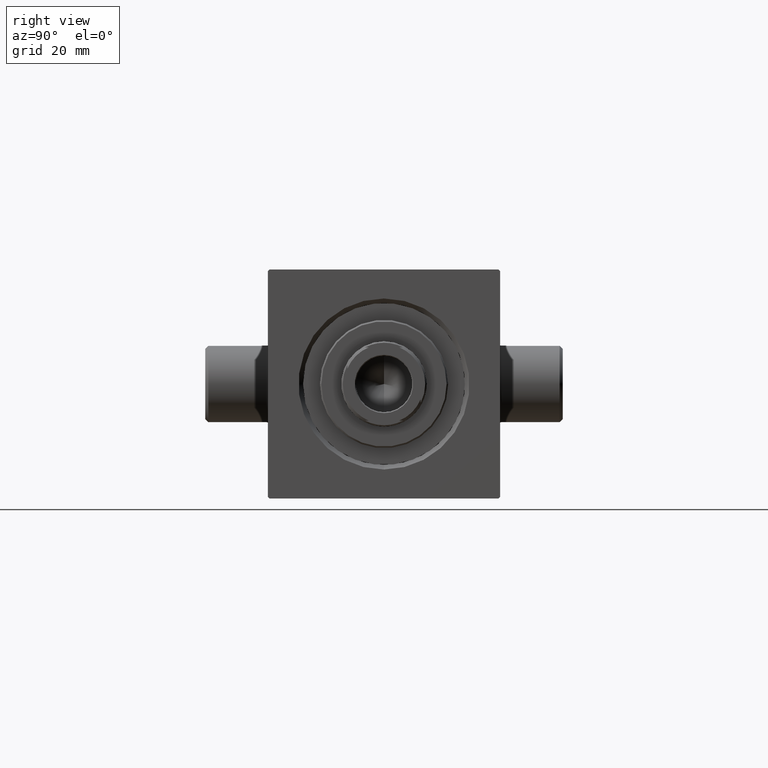
[diagram: clean part render]
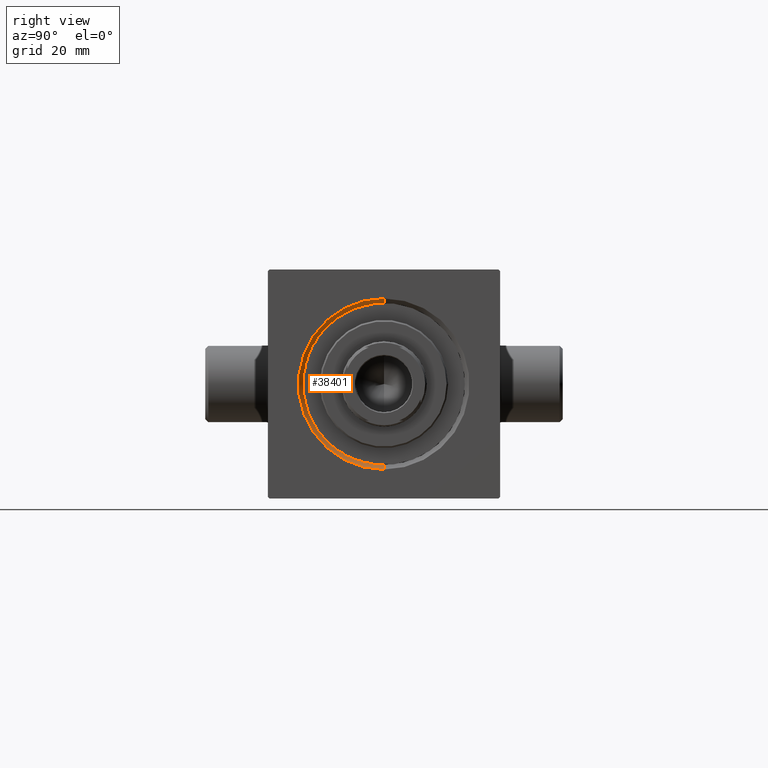
[diagram: same view with one face highlighted and labeled with its STEP entity id]
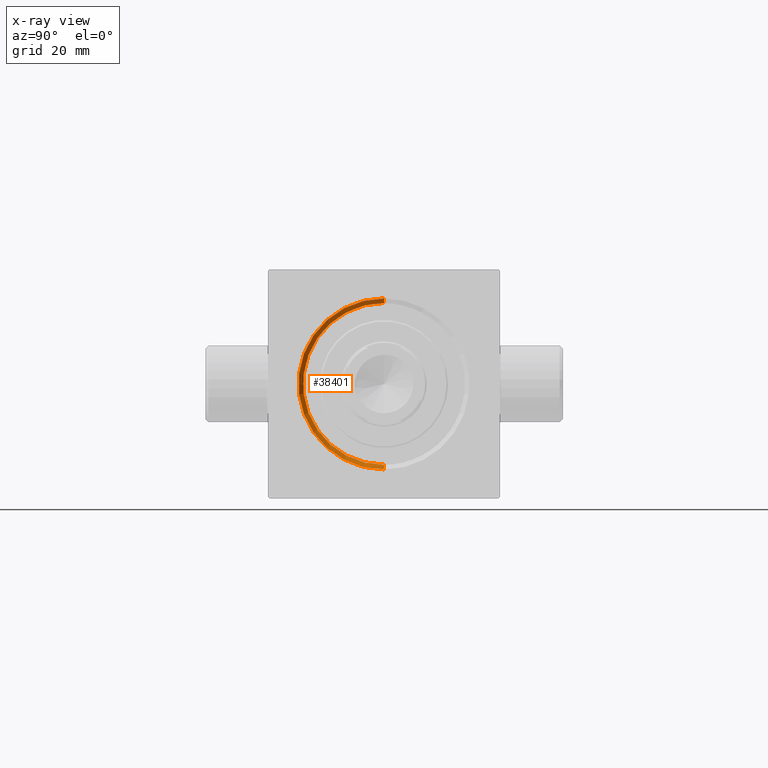
[diagram: x-ray of the same camera — body ghosted, the highlighted face saturated]
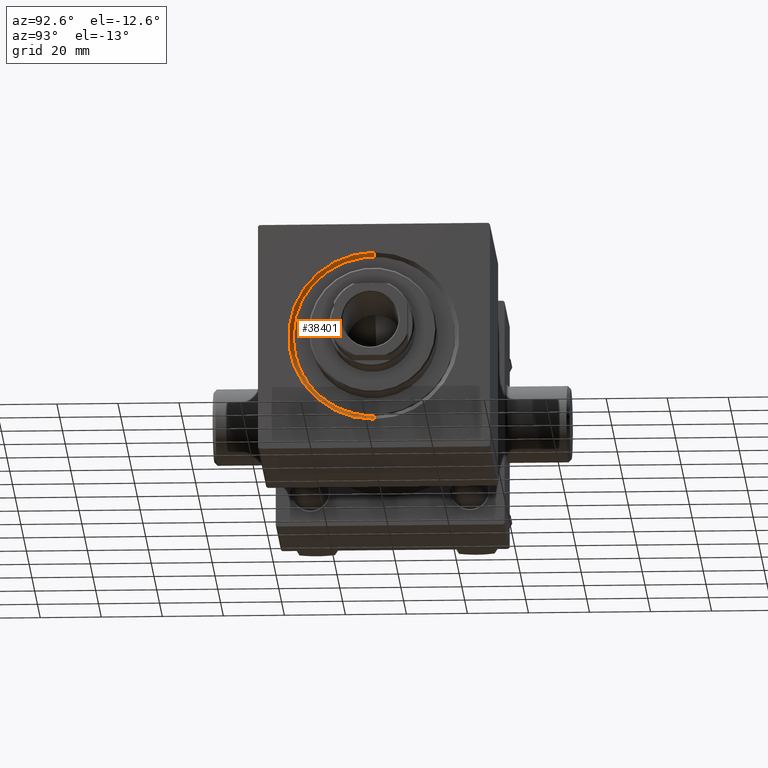
[diagram: same view with one face highlighted and labeled with its STEP entity id]
A machine part, right view. The second image highlights one B-rep face of the part: STEP entity #38401.
The next image is the same camera in x-ray: the body ghosted, the highlighted face saturated — about 0% of this face is hidden behind the body in this view.
A second angle (auxiliary view) of the same face is appended — the face is thin or edge-on in the first view.
In plain terms, the highlighted conical surface has half-angle 45 deg.
Its self-contained STEP definition (entity closure, byte-faithful):
#1291 = DIRECTION ( 'NONE',  ( 0.000000000000000000, 0.000000000000000000, 1.000000000000000000 ) ) ;
#1355 = DIRECTION ( 'NONE',  ( 1.000000000000000000, 0.000000000000000000, 0.000000000000000000 ) ) ;
#1599 = VERTEX_POINT ( 'NONE', #36057 ) ;
#1694 = CONICAL_SURFACE ( 'NONE', #33815, 26.50000000000000355, 0.7853981633974459475 ) ;
#2725 = CARTESIAN_POINT ( 'NONE',  ( 152.5000000000000568, 0.000000000000000000, 0.000000000000000000 ) ) ;
#6457 = AXIS2_PLACEMENT_3D ( 'NONE', #2725, #41570, #9510 ) ;
#7231 = CIRCLE ( 'NONE', #6457, 26.50000000000000355 ) ;
#9510 = DIRECTION ( 'NONE',  ( 0.000000000000000000, 0.000000000000000000, 1.000000000000000000 ) ) ;
#9818 = DIRECTION ( 'NONE',  ( 0.7071067811865491270, 0.000000000000000000, -0.7071067811865459074 ) ) ;
#9831 = VECTOR ( 'NONE', #9818, 1000.000000000000114 ) ;
#9842 = ORIENTED_EDGE ( 'NONE', *, *, #34280, .F. ) ;
#12485 = EDGE_CURVE ( 'NONE', #14540, #40783, #7231, .T. ) ;
#14476 = VERTEX_POINT ( 'NONE', #36889 ) ;
#14540 = VERTEX_POINT ( 'NONE', #16541 ) ;
#15875 = FACE_OUTER_BOUND ( 'NONE', #31558, .T. ) ;
#16541 = CARTESIAN_POINT ( 'NONE',  ( 152.5000000000000568, 3.245314017740486554E-15, 26.50000000000000355 ) ) ;
#17697 = LINE ( 'NONE', #45511, #35116 ) ;
#18998 = CARTESIAN_POINT ( 'NONE',  ( 152.5000000000000568, 0.000000000000000000, -26.50000000000000355 ) ) ;
#19104 = ORIENTED_EDGE ( 'NONE', *, *, #29588, .T. ) ;
#22432 = CARTESIAN_POINT ( 'NONE',  ( 152.5000000000000568, 0.000000000000000000, 0.000000000000000000 ) ) ;
#23283 = EDGE_CURVE ( 'NONE', #14476, #1599, #38795, .T. ) ;
#25408 = CARTESIAN_POINT ( 'NONE',  ( 154.0000000000000000, 0.000000000000000000, 0.000000000000000000 ) ) ;
#27370 = ORIENTED_EDGE ( 'NONE', *, *, #23283, .F. ) ;
#29588 = EDGE_CURVE ( 'NONE', #14540, #1599, #17697, .T. ) ;
#30548 = AXIS2_PLACEMENT_3D ( 'NONE', #25408, #33338, #1291 ) ;
#31558 = EDGE_LOOP ( 'NONE', ( #44761, #19104, #27370, #9842 ) ) ;
#33338 = DIRECTION ( 'NONE',  ( -1.000000000000000000, -0.000000000000000000, 0.000000000000000000 ) ) ;
#33815 = AXIS2_PLACEMENT_3D ( 'NONE', #22432, #1355, #43720 ) ;
#34280 = EDGE_CURVE ( 'NONE', #40783, #14476, #39296, .T. ) ;
#35116 = VECTOR ( 'NONE', #35678, 1000.000000000000114 ) ;
#35554 = CARTESIAN_POINT ( 'NONE',  ( 152.5000000000000568, 0.000000000000000000, -26.50000000000000355 ) ) ;
#35678 = DIRECTION ( 'NONE',  ( 0.7071067811865491270, 8.659560562354911904E-17, 0.7071067811865459074 ) ) ;
#36057 = CARTESIAN_POINT ( 'NONE',  ( 154.0000000000000000, 3.429011037612582176E-15, 27.99999999999994316 ) ) ;
#36889 = CARTESIAN_POINT ( 'NONE',  ( 154.0000000000000000, 0.000000000000000000, -27.99999999999994316 ) ) ;
#38401 = ADVANCED_FACE ( 'NONE', ( #15875 ), #1694, .F. ) ;
#38795 = CIRCLE ( 'NONE', #30548, 27.99999999999994316 ) ;
#39296 = LINE ( 'NONE', #35554, #9831 ) ;
#40783 = VERTEX_POINT ( 'NONE', #18998 ) ;
#41570 = DIRECTION ( 'NONE',  ( 1.000000000000000000, 0.000000000000000000, 0.000000000000000000 ) ) ;
#43720 = DIRECTION ( 'NONE',  ( 0.000000000000000000, 0.000000000000000000, -1.000000000000000000 ) ) ;
#44761 = ORIENTED_EDGE ( 'NONE', *, *, #12485, .F. ) ;
#45511 = CARTESIAN_POINT ( 'NONE',  ( 152.5000000000000568, 3.245314017740486554E-15, 26.50000000000000355 ) ) ;